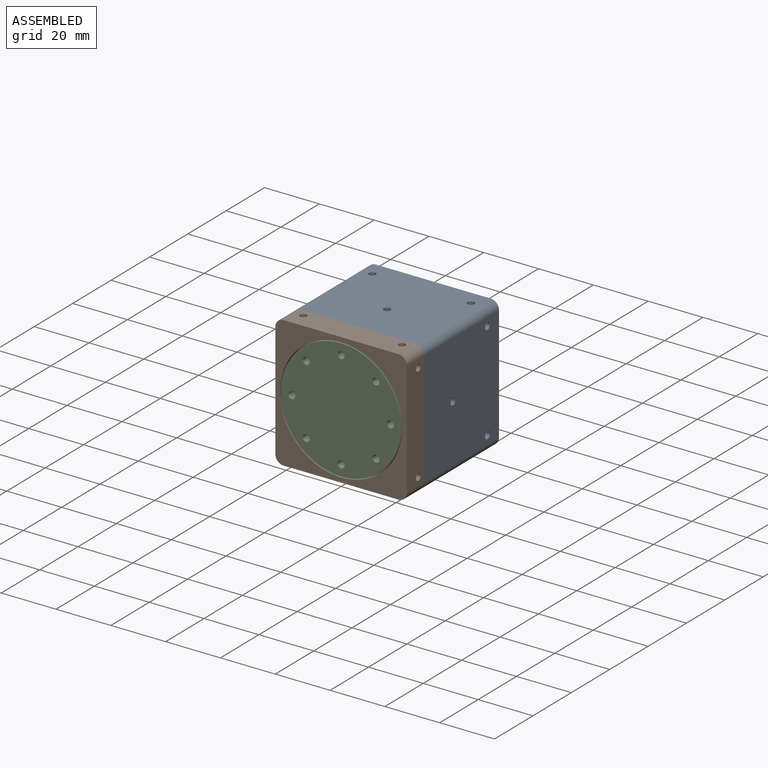
[diagram: assembled view]
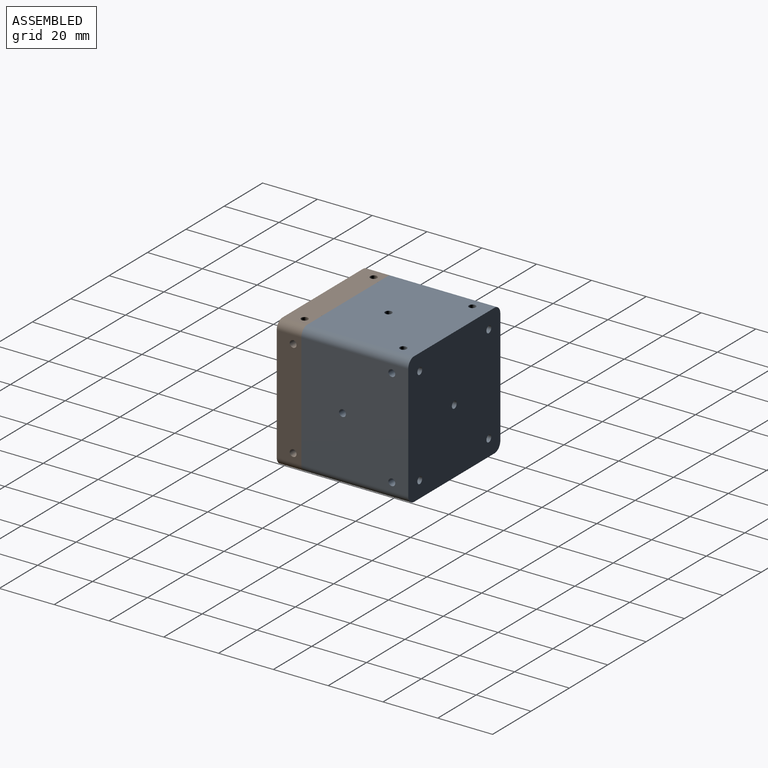
[diagram: assembled view, second angle]
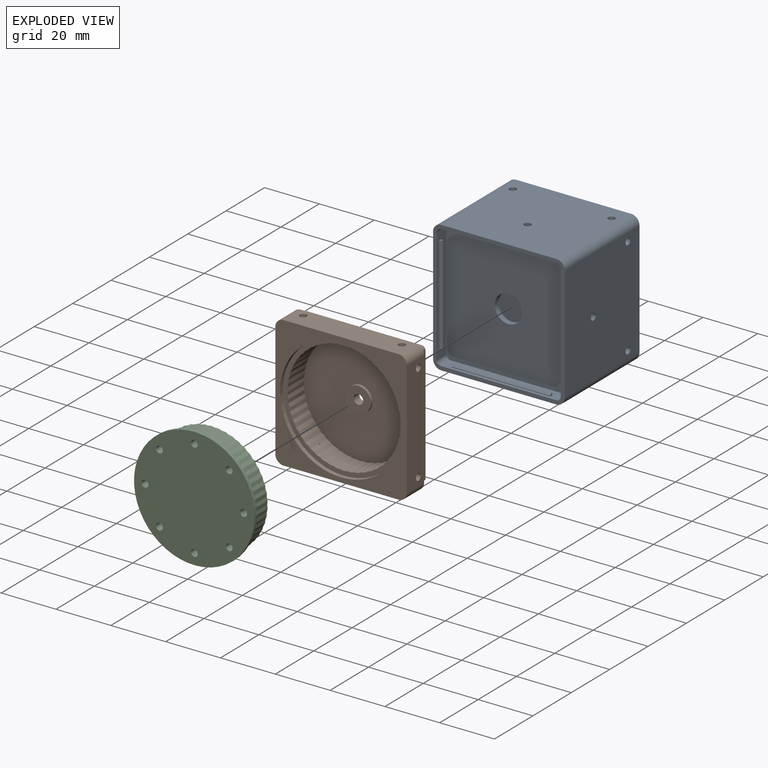
[diagram: exploded view]
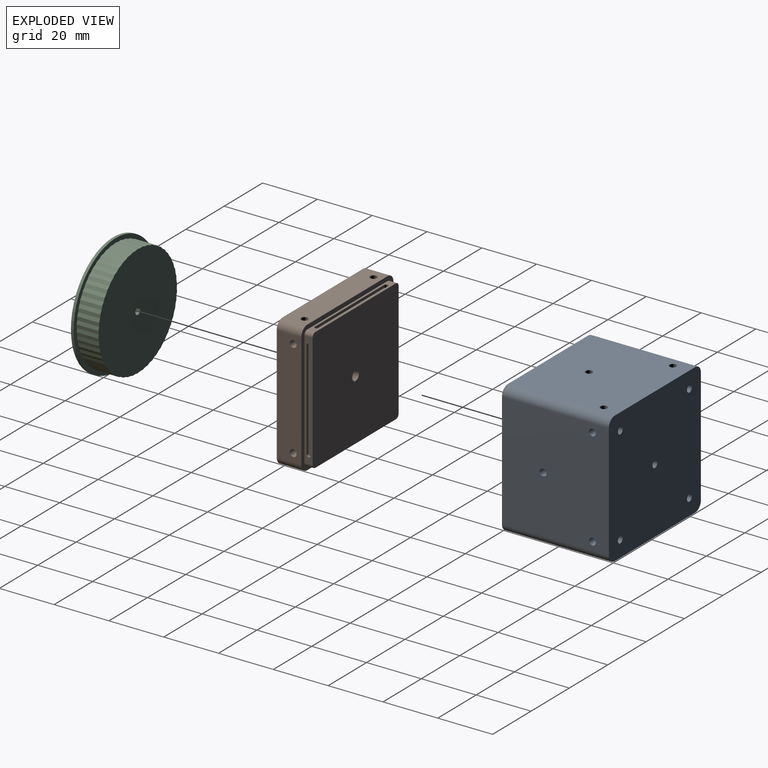
[diagram: exploded view, second angle]
ASSEMBLY  parts=3 mates=2
PART A: 95 faces, bbox 48x39x48 mm
  f0: plane 42x5mm, normal (0,0,-1), area 170.4mm2, adj f11,f13,f17,f18,f40,f41,f42,f43
  f1: plane 42x5mm, normal (1,0,0), area 170.4mm2, adj f12,f13,f17,f18,f33,f34,f35,f36
  f2: plane 42x5mm, normal (0,0,1), area 170.4mm2, adj f10,f12,f13,f18,f26,f27,f28,f29
  f3: plane 42x5mm, normal (-1,0,0), area 170.4mm2, adj f10,f11,f13,f18,f19,f20,f21,f22
  f4: plane 48x48mm, normal (0,1,0), area 2271.7mm2, adj f5,f6,f7,f8,f9,f14,f15,f16
  f5: cylinder r=3mm len=39mm, axis (0,-1,0), area 183.8mm2, adj f4,f6,f13,f15
  f6: plane 42x39mm, normal (0,0,-1), area 1623.3mm2, adj f4,f5,f7,f13,f53,f74,f79
  f7: cylinder r=3mm len=39mm, axis (0,-1,0), area 183.8mm2, adj f4,f6,f8,f13
  f8: plane 42x39mm, normal (-1,0,0), area 1623.3mm2, adj f4,f7,f9,f13,f68,f73,f77
  f9: cylinder r=3mm len=39mm, axis (0,-1,0), area 183.8mm2, adj f4,f8,f13,f14
  f10: cylinder r=1.6mm len=5mm, axis (0,-1,0), area 12.6mm2, adj f2,f3,f13,f18
  f11: cylinder r=1.6mm len=5mm, axis (0,-1,0), area 12.6mm2, adj f0,f3,f13,f18
  f12: cylinder r=1.6mm len=5mm, axis (0,-1,0), area 12.6mm2, adj f1,f2,f13,f18
  f13: plane 48x48mm, normal (0,-1,0), area 255.4mm2, adj f0,f1,f2,f3,f5,f6,f7,f8
  f14: plane 42x39mm, normal (0,0,1), area 1623.3mm2, adj f4,f9,f13,f16,f59,f63,f67
  f15: plane 42x39mm, normal (1,0,0), area 1623.3mm2, adj f4,f5,f13,f16,f49,f54,f60
  f16: cylinder r=3mm len=39mm, axis (0,-1,0), area 183.8mm2, adj f4,f13,f14,f15
  f17: cylinder r=1.6mm len=5mm, axis (0,-1,0), area 12.6mm2, adj f0,f1,f13,f18
  f18: plane 45.2x45.2mm, normal (0,-1,0), area 1962.3mm2, adj f0,f1,f2,f3,f10,f11,f12,f17
  f19: plane 1.1x0.95mm, normal (0,0,1), area 0.8mm2, adj f3,f20,f22,f23,f24,f25
  f20: plane 36x0.25mm, normal (0,-1,0), area 9mm2, adj f3,f19,f21,f24
  f21: plane 1.1x0.95mm, normal (0,0,-1), area 0.8mm2, adj f3,f20,f22,f23,f24,f25
  f22: plane 36x0.75mm, normal (0,1,0), area 27mm2, adj f3,f19,f21,f25
  f23: plane 36x0.2mm, normal (-1,0,0), area 7.2mm2, adj f19,f21,f24,f25
  f24: plane 36x0.7mm, normal (-0.71,-0.71,0), area 35.6mm2, adj f19,f20,f21,f23
  f25: plane 36x0.2mm, normal (-0.71,0.71,0), area 10.2mm2, adj f19,f21,f22,f23
  f26: plane 1.1x0.95mm, normal (1,0,0), area 0.8mm2, adj f2,f27,f29,f30,f31,f32
  f27: plane 36x0.25mm, normal (0,-1,0), area 9mm2, adj f2,f26,f28,f31
  f28: plane 1.1x0.95mm, normal (-1,0,0), area 0.8mm2, adj f2,f27,f29,f30,f31,f32
  f29: plane 36x0.75mm, normal (0,1,0), area 27mm2, adj f2,f26,f28,f32
  f30: plane 36x0.2mm, normal (0,0,1), area 7.2mm2, adj f26,f28,f31,f32
  f31: plane 36x0.7mm, normal (0,-0.71,0.71), area 35.6mm2, adj f26,f27,f28,f30
  f32: plane 36x0.2mm, normal (0,0.71,0.71), area 10.2mm2, adj f26,f28,f29,f30
  f33: plane 1.1x0.95mm, normal (0,0,-1), area 0.8mm2, adj f1,f34,f36,f37,f38,f39
  f34: plane 36x0.25mm, normal (0,-1,0), area 9mm2, adj f1,f33,f35,f38
  f35: plane 1.1x0.95mm, normal (0,0,1), area 0.8mm2, adj f1,f34,f36,f37,f38,f39
  f36: plane 36x0.75mm, normal (0,1,0), area 27mm2, adj f1,f33,f35,f39
  f37: plane 36x0.2mm, normal (1,0,0), area 7.2mm2, adj f33,f35,f38,f39
  f38: plane 36x0.7mm, normal (0.71,-0.71,0), area 35.6mm2, adj f33,f34,f35,f37
  f39: plane 36x0.2mm, normal (0.71,0.71,0), area 10.2mm2, adj f33,f35,f36,f37
  f40: plane 1.1x0.95mm, normal (-1,0,0), area 0.8mm2, adj f0,f41,f43,f44,f45,f46
  f41: plane 36x0.25mm, normal (0,-1,0), area 9mm2, adj f0,f40,f42,f45
  f42: plane 1.1x0.95mm, normal (1,0,0), area 0.8mm2, adj f0,f41,f43,f44,f45,f46
  f43: plane 36x0.75mm, normal (0,1,0), area 27mm2, adj f0,f40,f42,f46
  f44: plane 36x0.2mm, normal (0,0,-1), area 7.2mm2, adj f40,f42,f45,f46
  f45: plane 36x0.7mm, normal (0,-0.71,-0.71), area 35.6mm2, adj f40,f41,f42,f44
  f46: plane 36x0.2mm, normal (0,0.71,-0.71), area 10.2mm2, adj f40,f42,f43,f44
  f47: cylinder r=5mm len=10mm, axis (0,-1,0), area 62.8mm2, adj f18,f48
  f48: plane 10x10mm, normal (0,-1,0), area 78.5mm2, adj f47
  f49: cylinder r=1.25mm len=12mm, axis (1,0,0), area 94.2mm2, adj f15,f50
  f50: plane 2.5x2.5mm, normal (1,0,0), area 4.9mm2, adj f49
  f51: cylinder r=1.25mm len=5.12mm, axis (1,0,0), area 38.3mm2, adj f52,f53,f55,f91,f92
  f52: plane 2.5x2.5mm, normal (1,0,0), area 4.9mm2, adj f51
  f53: cylinder r=1.25mm len=5.12mm, axis (0,0,-1), area 38.3mm2, adj f6,f51,f54,f91,f92
  f54: cylinder r=1.25mm len=5.12mm, axis (1,0,0), area 38.3mm2, adj f15,f53,f55,f91,f92
  f55: cylinder r=1.25mm len=5.12mm, axis (0,0,-1), area 38.3mm2, adj f51,f54,f56,f91,f92
  f56: plane 2.5x2.5mm, normal (0,0,-1), area 4.9mm2, adj f55
  f57: cylinder r=1.25mm len=5.12mm, axis (1,0,0), area 38.3mm2, adj f58,f59,f61,f88,f89
  f58: plane 2.5x2.5mm, normal (1,0,0), area 4.9mm2, adj f57
  f59: cylinder r=1.25mm len=5.12mm, axis (0,0,1), area 38.3mm2, adj f14,f57,f60,f88,f89
  f60: cylinder r=1.25mm len=5.12mm, axis (1,0,0), area 38.3mm2, adj f15,f59,f61,f88,f89
  f61: cylinder r=1.25mm len=5.12mm, axis (0,0,1), area 38.3mm2, adj f57,f60,f62,f88,f89
  f62: plane 2.5x2.5mm, normal (0,0,1), area 4.9mm2, adj f61
  f63: cylinder r=1.25mm len=12mm, axis (0,0,1), area 94.2mm2, adj f14,f64
  f64: plane 2.5x2.5mm, normal (0,0,1), area 4.9mm2, adj f63
  f65: cylinder r=1.25mm len=5.12mm, axis (-1,0,0), area 38.3mm2, adj f66,f67,f69,f85,f86
  f66: plane 2.5x2.5mm, normal (-1,0,0), area 4.9mm2, adj f65
  f67: cylinder r=1.25mm len=5.12mm, axis (0,0,1), area 38.3mm2, adj f14,f65,f68,f85,f86
  f68: cylinder r=1.25mm len=5.12mm, axis (-1,0,0), area 38.3mm2, adj f8,f67,f69,f85,f86
  f69: cylinder r=1.25mm len=5.12mm, axis (0,0,1), area 38.3mm2, adj f65,f68,f70,f85,f86
  f70: plane 2.5x2.5mm, normal (0,0,1), area 4.9mm2, adj f69
  f71: cylinder r=1.25mm len=5.12mm, axis (0,0,-1), area 38.3mm2, adj f72,f73,f75,f82,f83
  f72: plane 2.5x2.5mm, normal (0,0,-1), area 4.9mm2, adj f71
  f73: cylinder r=1.25mm len=5.12mm, axis (-1,0,0), area 38.3mm2, adj f8,f71,f74,f82,f83
  f74: cylinder r=1.25mm len=5.12mm, axis (0,0,-1), area 38.3mm2, adj f6,f73,f75,f82,f83
  f75: cylinder r=1.25mm len=5.12mm, axis (-1,0,0), area 38.3mm2, adj f71,f74,f76,f82,f83
  f76: plane 2.5x2.5mm, normal (-1,0,0), area 4.9mm2, adj f75
  f77: cylinder r=1.25mm len=12mm, axis (-1,0,0), area 94.2mm2, adj f8,f78
  f78: plane 2.5x2.5mm, normal (-1,0,0), area 4.9mm2, adj f77
  f79: cylinder r=1.25mm len=12mm, axis (0,0,-1), area 94.2mm2, adj f6,f80
  f80: plane 2.5x2.5mm, normal (0,0,-1), area 4.9mm2, adj f79
  f81: plane 2.5x2.5mm, normal (0,1,0), area 4.9mm2, adj f82
  f82: cylinder r=1.25mm len=3.12mm, axis (0,1,0), area 22.6mm2, adj f71,f73,f74,f75,f81
  f83: cylinder r=1.25mm len=5.12mm, axis (0,1,0), area 38.3mm2, adj f4,f71,f73,f74,f75
  f84: plane 2.5x2.5mm, normal (0,1,0), area 4.9mm2, adj f85
  f85: cylinder r=1.25mm len=3.12mm, axis (0,1,0), area 22.6mm2, adj f65,f67,f68,f69,f84
  f86: cylinder r=1.25mm len=5.12mm, axis (0,1,0), area 38.3mm2, adj f4,f65,f67,f68,f69
  f87: plane 2.5x2.5mm, normal (0,1,0), area 4.9mm2, adj f88
  f88: cylinder r=1.25mm len=3.12mm, axis (0,1,0), area 22.6mm2, adj f57,f59,f60,f61,f87
  f89: cylinder r=1.25mm len=5.12mm, axis (0,1,0), area 38.3mm2, adj f4,f57,f59,f60,f61
  f90: plane 2.5x2.5mm, normal (0,1,0), area 4.9mm2, adj f91
  f91: cylinder r=1.25mm len=3.12mm, axis (0,1,0), area 22.6mm2, adj f51,f53,f54,f55,f90
  f92: cylinder r=1.25mm len=5.12mm, axis (0,1,0), area 38.3mm2, adj f4,f51,f53,f54,f55
  f93: cylinder r=1.25mm len=10mm, axis (0,1,0), area 78.5mm2, adj f4,f94
  f94: plane 2.5x2.5mm, normal (0,1,0), area 4.9mm2, adj f93
PART B: 169 faces, bbox 48x12x48 mm
  f0: plane 42x3mm, normal (1,0,0), area 70.2mm2, adj f8,f120,f123,f124,f140,f141,f142,f143
  f1: plane 42x3mm, normal (0,0,1), area 70.2mm2, adj f8,f120,f121,f124,f135,f136,f137,f138
  f2: plane 42x3mm, normal (-1,0,0), area 70.2mm2, adj f8,f121,f122,f124,f130,f131,f132,f133
  f3: plane 42x3mm, normal (0,0,-1), area 70.2mm2, adj f8,f122,f123,f124,f125,f126,f127,f128
  f4: plane 42x9mm, normal (-1,0,0), area 368.2mm2, adj f110,f116,f119,f124,f148,f167
  f5: plane 42x9mm, normal (0,0,-1), area 368.2mm2, adj f110,f116,f117,f124,f159,f168
  f6: plane 42x9mm, normal (1,0,0), area 368.2mm2, adj f110,f117,f118,f124,f154,f160
  f7: plane 42x9mm, normal (0,0,1), area 368.2mm2, adj f110,f118,f119,f124,f147,f153
  f8: plane 44.8x44.8mm, normal (0,1,0), area 1995.7mm2, adj f0,f1,f2,f3,f115,f120,f121,f122
  f9: plane 8.5x1.3mm, normal (0.99,0,0.12), area 11.1mm2, adj f10,f107,f111,f112
  f10: plane 8.5x1.3mm, normal (0.99,0,-0.12), area 11.1mm2, adj f9,f11,f111,f112
  f11: plane 8.5x1.27mm, normal (0.97,0,0.25), area 11.1mm2, adj f10,f12,f111,f112
  f12: plane 8.5x1.31mm, normal (1,0,0), area 11.1mm2, adj f11,f13,f111,f112
  f13: plane 8.5x1.22mm, normal (0.93,0,0.37), area 11.1mm2, adj f12,f14,f111,f112
  f14: plane 8.5x1.3mm, normal (0.99,0,0.13), area 11.1mm2, adj f13,f15,f111,f112
  f15: plane 8.5x1.15mm, normal (0.88,0,0.48), area 11.1mm2, adj f14,f16,f111,f112
  f16: plane 8.5x1.27mm, normal (0.97,0,0.25), area 11.1mm2, adj f15,f17,f111,f112
  f17: plane 8.5x1.06mm, normal (0.81,0,0.59), area 11.1mm2, adj f16,f18,f111,f112
  f18: plane 8.5x1.22mm, normal (0.93,0,0.37), area 11.1mm2, adj f17,f19,f111,f112
  f19: plane 8.5x0.96mm, normal (0.73,0,0.68), area 11.1mm2, adj f18,f20,f111,f112
  f20: plane 8.5x1.15mm, normal (0.88,0,0.48), area 11.1mm2, adj f19,f21,f111,f112
  f21: plane 8.5x1.01mm, normal (0.64,0,0.77), area 11.1mm2, adj f20,f22,f111,f112
  f22: plane 8.5x1.06mm, normal (0.81,0,0.59), area 11.1mm2, adj f21,f23,f111,f112
  f23: plane 8.5x1.1mm, normal (0.54,0,0.84), area 11.1mm2, adj f22,f24,f111,f112
  f24: plane 8.5x0.95mm, normal (0.73,0,0.69), area 11.1mm2, adj f23,f25,f111,f112
  f25: plane 8.5x1.18mm, normal (0.43,0,0.9), area 11mm2, adj f24,f26,f111,f112,f163,f164
  f26: plane 8.5x1.01mm, normal (0.64,0,0.77), area 11.1mm2, adj f25,f27,f111,f112
  f27: plane 8.5x1.25mm, normal (0.31,0,0.95), area 11.1mm2, adj f26,f28,f111,f112
  f28: plane 8.5x1.11mm, normal (0.53,0,0.85), area 11.1mm2, adj f27,f29,f111,f112
  f29: plane 8.5x1.29mm, normal (0.19,0,0.98), area 11.1mm2, adj f28,f30,f111,f112
  f30: plane 8.5x1.19mm, normal (0.42,0,0.91), area 11.1mm2, adj f29,f31,f111,f112
  f31: plane 8.5x1.31mm, normal (0.07,0,1), area 11.1mm2, adj f30,f32,f111,f112
  f32: plane 8.5x1.25mm, normal (0.31,0,0.95), area 11.1mm2, adj f31,f33,f111,f112
  f33: plane 8.5x1.31mm, normal (-0.06,0,1), area 11.1mm2, adj f32,f34,f111,f112
  f34: plane 8.5x1.29mm, normal (0.19,0,0.98), area 11.1mm2, adj f33,f35,f111,f112
  f35: plane 8.5x1.29mm, normal (-0.19,0,0.98), area 11.1mm2, adj f34,f36,f111,f112
  f36: plane 8.5x1.31mm, normal (0.06,0,1), area 11.1mm2, adj f35,f37,f111,f112
  f37: plane 8.5x1.25mm, normal (-0.31,0,0.95), area 11.1mm2, adj f36,f38,f111,f112
  f38: plane 8.5x1.31mm, normal (-0.07,0,1), area 11.1mm2, adj f37,f39,f111,f112
  f39: plane 8.5x1.19mm, normal (-0.42,0,0.91), area 11.1mm2, adj f38,f40,f111,f112
  f40: plane 8.5x1.29mm, normal (-0.19,0,0.98), area 11.1mm2, adj f39,f41,f111,f112
  f41: plane 8.5x1.11mm, normal (-0.53,0,0.85), area 11.1mm2, adj f40,f42,f111,f112
  f42: plane 8.5x1.25mm, normal (-0.31,0,0.95), area 11.1mm2, adj f41,f43,f111,f112
  f43: plane 8.5x1.01mm, normal (-0.64,0,0.77), area 11.1mm2, adj f42,f44,f111,f112
  f44: plane 8.5x1.18mm, normal (-0.43,0,0.9), area 11mm2, adj f43,f45,f111,f112,f157,f158
  f45: plane 8.5x0.95mm, normal (-0.73,0,0.69), area 11.1mm2, adj f44,f46,f111,f112
  f46: plane 8.5x1.1mm, normal (-0.54,0,0.84), area 11.1mm2, adj f45,f47,f111,f112
  f47: plane 8.5x1.06mm, normal (-0.81,0,0.59), area 11.1mm2, adj f46,f48,f111,f112
  f48: plane 8.5x1.01mm, normal (-0.64,0,0.77), area 11.1mm2, adj f47,f49,f111,f112
  f49: plane 8.5x1.15mm, normal (-0.88,0,0.48), area 11.1mm2, adj f48,f50,f111,f112
  f50: plane 8.5x0.96mm, normal (-0.73,0,0.68), area 11.1mm2, adj f49,f51,f111,f112
  f51: plane 8.5x1.22mm, normal (-0.93,0,0.37), area 11.1mm2, adj f50,f52,f111,f112
  f52: plane 8.5x1.06mm, normal (-0.81,0,0.59), area 11.1mm2, adj f51,f53,f111,f112
  f53: plane 8.5x1.27mm, normal (-0.97,0,0.25), area 11.1mm2, adj f52,f54,f111,f112
  f54: plane 8.5x1.15mm, normal (-0.88,0,0.48), area 11.1mm2, adj f53,f55,f111,f112
  f55: plane 8.5x1.3mm, normal (-0.99,0,0.13), area 11.1mm2, adj f54,f56,f111,f112
  f56: plane 8.5x1.22mm, normal (-0.93,0,0.37), area 11.1mm2, adj f55,f57,f111,f112
  f57: plane 8.5x1.31mm, normal (-1,0,0), area 11.1mm2, adj f56,f58,f111,f112
  f58: plane 8.5x1.27mm, normal (-0.97,0,0.25), area 11.1mm2, adj f57,f59,f111,f112
  f59: plane 8.5x1.3mm, normal (-0.99,0,-0.12), area 11.1mm2, adj f58,f60,f111,f112
  f60: plane 8.5x1.3mm, normal (-0.99,0,0.12), area 11.1mm2, adj f59,f61,f111,f112
  f61: plane 8.5x1.27mm, normal (-0.97,0,-0.25), area 11.1mm2, adj f60,f62,f111,f112
  f62: plane 8.5x1.31mm, normal (-1,0,0), area 11.1mm2, adj f61,f63,f111,f112
  f63: plane 8.5x1.22mm, normal (-0.93,0,-0.37), area 11.1mm2, adj f62,f64,f111,f112
  f64: plane 8.5x1.3mm, normal (-0.99,0,-0.13), area 11.1mm2, adj f63,f65,f111,f112
  f65: plane 8.5x1.15mm, normal (-0.88,0,-0.48), area 11.1mm2, adj f64,f66,f111,f112
  f66: plane 8.5x1.27mm, normal (-0.97,0,-0.25), area 11.1mm2, adj f65,f67,f111,f112
  f67: plane 8.5x1.06mm, normal (-0.81,0,-0.59), area 11.1mm2, adj f66,f68,f111,f112
  f68: plane 8.5x1.22mm, normal (-0.93,0,-0.37), area 11.1mm2, adj f67,f69,f111,f112
  f69: plane 8.5x0.96mm, normal (-0.73,0,-0.68), area 11.1mm2, adj f68,f70,f111,f112
  f70: plane 8.5x1.15mm, normal (-0.88,0,-0.48), area 11.1mm2, adj f69,f71,f111,f112
  f71: plane 8.5x1.01mm, normal (-0.64,0,-0.77), area 11.1mm2, adj f70,f72,f111,f112
  f72: plane 8.5x1.06mm, normal (-0.81,0,-0.59), area 11.1mm2, adj f71,f73,f111,f112
  f73: plane 8.5x1.1mm, normal (-0.54,0,-0.84), area 11.1mm2, adj f72,f74,f111,f112
  f74: plane 8.5x0.95mm, normal (-0.73,0,-0.69), area 11.1mm2, adj f73,f75,f111,f112
  f75: plane 8.5x1.18mm, normal (-0.43,0,-0.9), area 11mm2, adj f74,f76,f111,f112,f151,f152
  f76: plane 8.5x1.01mm, normal (-0.64,0,-0.77), area 11.1mm2, adj f75,f77,f111,f112
  f77: plane 8.5x1.25mm, normal (-0.31,0,-0.95), area 11.1mm2, adj f76,f78,f111,f112
  f78: plane 8.5x1.11mm, normal (-0.53,0,-0.85), area 11.1mm2, adj f77,f79,f111,f112
  f79: plane 8.5x1.29mm, normal (-0.19,0,-0.98), area 11.1mm2, adj f78,f80,f111,f112
  f80: plane 8.5x1.19mm, normal (-0.42,0,-0.91), area 11.1mm2, adj f79,f81,f111,f112
  f81: plane 8.5x1.31mm, normal (-0.07,0,-1), area 11.1mm2, adj f80,f82,f111,f112
  f82: plane 8.5x1.25mm, normal (-0.31,0,-0.95), area 11.1mm2, adj f81,f83,f111,f112
  f83: plane 8.5x1.31mm, normal (0.06,0,-1), area 11.1mm2, adj f82,f84,f111,f112
  f84: plane 8.5x1.29mm, normal (-0.19,0,-0.98), area 11.1mm2, adj f83,f85,f111,f112
  f85: plane 8.5x1.29mm, normal (0.19,0,-0.98), area 11.1mm2, adj f84,f86,f111,f112
  f86: plane 8.5x1.31mm, normal (-0.06,0,-1), area 11.1mm2, adj f85,f87,f111,f112
  f87: plane 8.5x1.25mm, normal (0.31,0,-0.95), area 11.1mm2, adj f86,f88,f111,f112
  f88: plane 8.5x1.31mm, normal (0.07,0,-1), area 11.1mm2, adj f87,f89,f111,f112
  f89: plane 8.5x1.19mm, normal (0.42,0,-0.91), area 11.1mm2, adj f88,f90,f111,f112
  f90: plane 8.5x1.29mm, normal (0.19,0,-0.98), area 11.1mm2, adj f89,f91,f111,f112
  f91: plane 8.5x1.11mm, normal (0.53,0,-0.85), area 11.1mm2, adj f90,f92,f111,f112
  f92: plane 8.5x1.25mm, normal (0.31,0,-0.95), area 11.1mm2, adj f91,f93,f111,f112
  f93: plane 8.5x1.01mm, normal (0.64,0,-0.77), area 11.1mm2, adj f92,f94,f111,f112
  f94: plane 8.5x1.18mm, normal (0.43,0,-0.9), area 11mm2, adj f93,f95,f111,f112,f145,f146
  f95: plane 8.5x0.95mm, normal (0.73,0,-0.69), area 11.1mm2, adj f94,f96,f111,f112
  f96: plane 8.5x1.1mm, normal (0.54,0,-0.84), area 11.1mm2, adj f95,f97,f111,f112
  f97: plane 8.5x1.06mm, normal (0.81,0,-0.59), area 11.1mm2, adj f96,f98,f111,f112
  f98: plane 8.5x1.01mm, normal (0.64,0,-0.77), area 11.1mm2, adj f97,f99,f111,f112
  f99: plane 8.5x1.15mm, normal (0.88,0,-0.48), area 11.1mm2, adj f98,f100,f111,f112
  f100: plane 8.5x0.96mm, normal (0.73,0,-0.68), area 11.1mm2, adj f99,f101,f111,f112
  f101: plane 8.5x1.22mm, normal (0.93,0,-0.37), area 11.1mm2, adj f100,f102,f111,f112
  f102: plane 8.5x1.06mm, normal (0.81,0,-0.59), area 11.1mm2, adj f101,f103,f111,f112
  f103: plane 8.5x1.27mm, normal (0.97,0,-0.25), area 11.1mm2, adj f102,f104,f111,f112
  f104: plane 8.5x1.15mm, normal (0.88,0,-0.48), area 11.1mm2, adj f103,f105,f111,f112
  f105: plane 8.5x1.3mm, normal (0.99,0,-0.13), area 11.1mm2, adj f104,f106,f111,f112
  f106: plane 8.5x1.22mm, normal (0.93,0,-0.37), area 11.1mm2, adj f105,f108,f111,f112
  f107: plane 8.5x1.27mm, normal (0.97,0,-0.25), area 11.1mm2, adj f9,f108,f111,f112
  f108: plane 8.5x1.31mm, normal (1,0,0), area 11.1mm2, adj f106,f107,f111,f112
  f109: cylinder r=22.3mm len=44.6mm, axis (0,-1,0), area 210.2mm2, adj f110,f111
  f110: plane 48x48mm, normal (0,-1,0), area 734mm2, adj f4,f5,f6,f7,f109,f116,f117,f118
  f111: plane 44.6x44.6mm, normal (0,-1,0), area 229.7mm2, adj f9,f10,f11,f12,f13,f14,f15,f16
  f112: plane 41.41x41.33mm, normal (0,-1,0), area 1269mm2, adj f9,f10,f11,f12,f13,f14,f15,f16
  f113: plane 9x9mm, normal (0,-1,0), area 54mm2, adj f114,f115
  f114: cylinder r=4.5mm len=9mm, axis (0,1,0), area 28.3mm2, adj f112,f113
  f115: cylinder r=1.75mm len=3.5mm, axis (0,1,0), area 33mm2, adj f8,f113
  f116: cylinder r=3mm len=9mm, axis (0,-1,0), area 42.4mm2, adj f4,f5,f110,f124
  f117: cylinder r=3mm len=9mm, axis (0,1,0), area 42.4mm2, adj f5,f6,f110,f124
  f118: cylinder r=3mm len=9mm, axis (0,-1,0), area 42.4mm2, adj f6,f7,f110,f124
  f119: cylinder r=3mm len=9mm, axis (0,1,0), area 42.4mm2, adj f4,f7,f110,f124
  f120: cylinder r=1.4mm len=3mm, axis (0,1,0), area 6.6mm2, adj f0,f1,f8,f124
  f121: cylinder r=1.4mm len=3mm, axis (0,1,0), area 6.6mm2, adj f1,f2,f8,f124
  f122: cylinder r=1.4mm len=3mm, axis (0,1,0), area 6.6mm2, adj f2,f3,f8,f124
  f123: cylinder r=1.4mm len=3mm, axis (0,1,0), area 6.6mm2, adj f0,f3,f8,f124
  f124: plane 48x48mm, normal (0,1,0), area 290.9mm2, adj f0,f1,f2,f3,f4,f5,f6,f7
  f125: cylinder r=0.75mm len=1.5mm, axis (0,0,-1), area 2.4mm2, adj f3,f126,f128,f129
  f126: plane 36x1mm, normal (0,1,0), area 36mm2, adj f3,f125,f127,f129
  f127: cylinder r=0.75mm len=1.5mm, axis (0,0,-1), area 2.4mm2, adj f3,f126,f128,f129
  f128: plane 36x1mm, normal (0,-1,0), area 36mm2, adj f3,f125,f127,f129
  f129: plane 37.5x1.5mm, normal (0,0,-1), area 55.8mm2, adj f125,f126,f127,f128
  f130: cylinder r=0.75mm len=1.5mm, axis (-1,0,0), area 2.4mm2, adj f2,f131,f133,f134
  f131: plane 36x1mm, normal (0,1,0), area 36mm2, adj f2,f130,f132,f134
  f132: cylinder r=0.75mm len=1.5mm, axis (-1,0,0), area 2.4mm2, adj f2,f131,f133,f134
  f133: plane 36x1mm, normal (0,-1,0), area 36mm2, adj f2,f130,f132,f134
  f134: plane 37.5x1.5mm, normal (-1,0,0), area 55.8mm2, adj f130,f131,f132,f133
  f135: cylinder r=0.75mm len=1.5mm, axis (0,0,1), area 2.4mm2, adj f1,f136,f138,f139
  f136: plane 36x1mm, normal (0,1,0), area 36mm2, adj f1,f135,f137,f139
  f137: cylinder r=0.75mm len=1.5mm, axis (0,0,1), area 2.4mm2, adj f1,f136,f138,f139
  f138: plane 36x1mm, normal (0,-1,0), area 36mm2, adj f1,f135,f137,f139
  f139: plane 37.5x1.5mm, normal (0,0,1), area 55.8mm2, adj f135,f136,f137,f138
  f140: cylinder r=0.75mm len=1.5mm, axis (1,0,0), area 2.4mm2, adj f0,f141,f143,f144
  f141: plane 36x1mm, normal (0,1,0), area 36mm2, adj f0,f140,f142,f144
  f142: cylinder r=0.75mm len=1.5mm, axis (1,0,0), area 2.4mm2, adj f0,f141,f143,f144
  f143: plane 36x1mm, normal (0,-1,0), area 36mm2, adj f0,f140,f142,f144
  f144: plane 37.5x1.5mm, normal (1,0,0), area 55.8mm2, adj f140,f141,f142,f143
  f145: cylinder r=1.25mm len=6mm, axis (-1,0,0), area 40.8mm2, adj f94,f146,f147,f149
  f146: plane 2.5x2.42mm, normal (-1,0,0), area 4.9mm2, adj f94,f145
  f147: cylinder r=1.25mm len=6mm, axis (0,0,1), area 40.9mm2, adj f7,f145,f148
  f148: cylinder r=1.25mm len=6mm, axis (-1,0,0), area 40.9mm2, adj f4,f147,f149
  f149: cylinder r=1.25mm len=6mm, axis (0,0,1), area 40.9mm2, adj f145,f148,f150
  f150: plane 2.5x2.5mm, normal (0,0,1), area 4.9mm2, adj f149
  f151: cylinder r=1.25mm len=6mm, axis (1,0,0), area 40.8mm2, adj f75,f152,f153,f155
  f152: plane 2.5x2.42mm, normal (1,0,0), area 4.9mm2, adj f75,f151
  f153: cylinder r=1.25mm len=6mm, axis (0,0,1), area 40.9mm2, adj f7,f151,f154
  f154: cylinder r=1.25mm len=6mm, axis (1,0,0), area 40.9mm2, adj f6,f153,f155
  f155: cylinder r=1.25mm len=6mm, axis (0,0,1), area 40.9mm2, adj f151,f154,f156
  f156: plane 2.5x2.5mm, normal (0,0,1), area 4.9mm2, adj f155
  f157: cylinder r=1.25mm len=6mm, axis (1,0,0), area 40.8mm2, adj f44,f158,f159,f161
  f158: plane 2.5x2.42mm, normal (1,0,0), area 4.9mm2, adj f44,f157
  f159: cylinder r=1.25mm len=6mm, axis (0,0,-1), area 40.9mm2, adj f5,f157,f160
  f160: cylinder r=1.25mm len=6mm, axis (1,0,0), area 40.9mm2, adj f6,f159,f161
  f161: cylinder r=1.25mm len=6mm, axis (0,0,-1), area 40.9mm2, adj f157,f160,f162
  f162: plane 2.5x2.5mm, normal (0,0,-1), area 4.9mm2, adj f161
  f163: cylinder r=1.25mm len=6mm, axis (-1,0,0), area 40.8mm2, adj f25,f164,f165,f168
  f164: plane 2.5x2.42mm, normal (-1,0,0), area 4.9mm2, adj f25,f163
  f165: cylinder r=1.25mm len=6mm, axis (0,0,-1), area 40.9mm2, adj f163,f166,f167
  f166: plane 2.5x2.5mm, normal (0,0,-1), area 4.9mm2, adj f165
  f167: cylinder r=1.25mm len=6mm, axis (-1,0,0), area 40.9mm2, adj f4,f165,f168
  f168: cylinder r=1.25mm len=6mm, axis (0,0,-1), area 40.9mm2, adj f5,f163,f167
PART C: 122 faces, bbox 44x9x44 mm
  f0: cylinder r=22mm len=44mm, axis (0,-1,0), area 138.2mm2, adj f1,f2
  f1: plane 44x44mm, normal (0,1,0), area 214mm2, adj f0,f3,f4,f5,f6,f7,f8,f9
  f2: plane 44x44mm, normal (0,-1,0), area 1481.3mm2, adj f0,f104,f106,f108,f110,f112,f114,f116
  f3: plane 8x1.29mm, normal (-0.99,0,-0.12), area 10.4mm2, adj f1,f4,f102,f103
  f4: plane 8x1.26mm, normal (-0.97,0,0.25), area 10.4mm2, adj f1,f3,f5,f103
  f5: plane 8x1.3mm, normal (-1,0,0), area 10.4mm2, adj f1,f4,f6,f103
  f6: plane 8x1.21mm, normal (-0.93,0,0.37), area 10.4mm2, adj f1,f5,f7,f103
  f7: plane 8x1.29mm, normal (-0.99,0,0.13), area 10.4mm2, adj f1,f6,f8,f103
  f8: plane 8x1.14mm, normal (-0.88,0,0.48), area 10.4mm2, adj f1,f7,f9,f103
  f9: plane 8x1.26mm, normal (-0.97,0,0.25), area 10.4mm2, adj f1,f8,f10,f103
  f10: plane 8x1.05mm, normal (-0.81,0,0.59), area 10.4mm2, adj f1,f9,f11,f103
  f11: plane 8x1.21mm, normal (-0.93,0,0.37), area 10.4mm2, adj f1,f10,f12,f103
  f12: plane 8x0.95mm, normal (-0.73,0,0.68), area 10.4mm2, adj f1,f11,f13,f103
  f13: plane 8x1.14mm, normal (-0.88,0,0.48), area 10.4mm2, adj f1,f12,f14,f103
  f14: plane 8x1mm, normal (-0.64,0,0.77), area 10.4mm2, adj f1,f13,f15,f103
  f15: plane 8x1.05mm, normal (-0.81,0,0.59), area 10.4mm2, adj f1,f14,f16,f103
  f16: plane 8x1.09mm, normal (-0.54,0,0.84), area 10.4mm2, adj f1,f15,f17,f103
  f17: plane 8x0.94mm, normal (-0.73,0,0.69), area 10.4mm2, adj f1,f16,f18,f103
  f18: plane 8x1.17mm, normal (-0.43,0,0.9), area 10.4mm2, adj f1,f17,f19,f103
  f19: plane 8x1mm, normal (-0.64,0,0.77), area 10.4mm2, adj f1,f18,f20,f103
  f20: plane 8x1.23mm, normal (-0.31,0,0.95), area 10.4mm2, adj f1,f19,f21,f103
  f21: plane 8x1.1mm, normal (-0.53,0,0.85), area 10.4mm2, adj f1,f20,f22,f103
  f22: plane 8x1.27mm, normal (-0.19,0,0.98), area 10.4mm2, adj f1,f21,f23,f103
  f23: plane 8x1.18mm, normal (-0.42,0,0.91), area 10.4mm2, adj f1,f22,f24,f103
  f24: plane 8x1.29mm, normal (-0.07,0,1), area 10.4mm2, adj f1,f23,f25,f103
  f25: plane 8x1.23mm, normal (-0.31,0,0.95), area 10.4mm2, adj f1,f24,f26,f103
  f26: plane 8x1.29mm, normal (0.06,0,1), area 10.4mm2, adj f1,f25,f27,f103
  f27: plane 8x1.27mm, normal (-0.19,0,0.98), area 10.4mm2, adj f1,f26,f28,f103
  f28: plane 8x1.27mm, normal (0.19,0,0.98), area 10.4mm2, adj f1,f27,f29,f103
  f29: plane 8x1.29mm, normal (-0.06,0,1), area 10.4mm2, adj f1,f28,f30,f103
  f30: plane 8x1.23mm, normal (0.31,0,0.95), area 10.4mm2, adj f1,f29,f31,f103
  f31: plane 8x1.29mm, normal (0.07,0,1), area 10.4mm2, adj f1,f30,f32,f103
  f32: plane 8x1.18mm, normal (0.42,0,0.91), area 10.4mm2, adj f1,f31,f33,f103
  f33: plane 8x1.27mm, normal (0.19,0,0.98), area 10.4mm2, adj f1,f32,f34,f103
  f34: plane 8x1.1mm, normal (0.53,0,0.85), area 10.4mm2, adj f1,f33,f35,f103
  f35: plane 8x1.23mm, normal (0.31,0,0.95), area 10.4mm2, adj f1,f34,f36,f103
  f36: plane 8x1mm, normal (0.64,0,0.77), area 10.4mm2, adj f1,f35,f37,f103
  f37: plane 8x1.17mm, normal (0.43,0,0.9), area 10.4mm2, adj f1,f36,f38,f103
  f38: plane 8x0.94mm, normal (0.73,0,0.69), area 10.4mm2, adj f1,f37,f39,f103
  f39: plane 8x1.09mm, normal (0.54,0,0.84), area 10.4mm2, adj f1,f38,f40,f103
  f40: plane 8x1.05mm, normal (0.81,0,0.59), area 10.4mm2, adj f1,f39,f41,f103
  f41: plane 8x1mm, normal (0.64,0,0.77), area 10.4mm2, adj f1,f40,f42,f103
  f42: plane 8x1.14mm, normal (0.88,0,0.48), area 10.4mm2, adj f1,f41,f43,f103
  f43: plane 8x0.95mm, normal (0.73,0,0.68), area 10.4mm2, adj f1,f42,f44,f103
  f44: plane 8x1.21mm, normal (0.93,0,0.37), area 10.4mm2, adj f1,f43,f45,f103
  f45: plane 8x1.05mm, normal (0.81,0,0.59), area 10.4mm2, adj f1,f44,f46,f103
  f46: plane 8x1.26mm, normal (0.97,0,0.25), area 10.4mm2, adj f1,f45,f47,f103
  f47: plane 8x1.14mm, normal (0.88,0,0.48), area 10.4mm2, adj f1,f46,f48,f103
  f48: plane 8x1.29mm, normal (0.99,0,0.13), area 10.4mm2, adj f1,f47,f49,f103
  f49: plane 8x1.21mm, normal (0.93,0,0.37), area 10.4mm2, adj f1,f48,f50,f103
  f50: plane 8x1.3mm, normal (1,0,0), area 10.4mm2, adj f1,f49,f51,f103
  f51: plane 8x1.26mm, normal (0.97,0,0.25), area 10.4mm2, adj f1,f50,f52,f103
  f52: plane 8x1.29mm, normal (0.99,0,-0.12), area 10.4mm2, adj f1,f51,f53,f103
  f53: plane 8x1.29mm, normal (0.99,0,0.12), area 10.4mm2, adj f1,f52,f54,f103
  f54: plane 8x1.26mm, normal (0.97,0,-0.25), area 10.4mm2, adj f1,f53,f55,f103
  f55: plane 8x1.3mm, normal (1,0,0), area 10.4mm2, adj f1,f54,f56,f103
  f56: plane 8x1.21mm, normal (0.93,0,-0.37), area 10.4mm2, adj f1,f55,f57,f103
  f57: plane 8x1.29mm, normal (0.99,0,-0.13), area 10.4mm2, adj f1,f56,f58,f103
  f58: plane 8x1.14mm, normal (0.88,0,-0.48), area 10.4mm2, adj f1,f57,f59,f103
  f59: plane 8x1.26mm, normal (0.97,0,-0.25), area 10.4mm2, adj f1,f58,f60,f103
  f60: plane 8x1.05mm, normal (0.81,0,-0.59), area 10.4mm2, adj f1,f59,f61,f103
  f61: plane 8x1.21mm, normal (0.93,0,-0.37), area 10.4mm2, adj f1,f60,f62,f103
  f62: plane 8x0.95mm, normal (0.73,0,-0.68), area 10.4mm2, adj f1,f61,f63,f103
  f63: plane 8x1.14mm, normal (0.88,0,-0.48), area 10.4mm2, adj f1,f62,f64,f103
  f64: plane 8x1mm, normal (0.64,0,-0.77), area 10.4mm2, adj f1,f63,f65,f103
  f65: plane 8x1.05mm, normal (0.81,0,-0.59), area 10.4mm2, adj f1,f64,f66,f103
  f66: plane 8x1.09mm, normal (0.54,0,-0.84), area 10.4mm2, adj f1,f65,f67,f103
  f67: plane 8x0.94mm, normal (0.73,0,-0.69), area 10.4mm2, adj f1,f66,f68,f103
  f68: plane 8x1.17mm, normal (0.43,0,-0.9), area 10.4mm2, adj f1,f67,f69,f103
  f69: plane 8x1mm, normal (0.64,0,-0.77), area 10.4mm2, adj f1,f68,f70,f103
  f70: plane 8x1.23mm, normal (0.31,0,-0.95), area 10.4mm2, adj f1,f69,f71,f103
  f71: plane 8x1.1mm, normal (0.53,0,-0.85), area 10.4mm2, adj f1,f70,f72,f103
  f72: plane 8x1.27mm, normal (0.19,0,-0.98), area 10.4mm2, adj f1,f71,f73,f103
  f73: plane 8x1.18mm, normal (0.42,0,-0.91), area 10.4mm2, adj f1,f72,f74,f103
  f74: plane 8x1.29mm, normal (0.07,0,-1), area 10.4mm2, adj f1,f73,f75,f103
  f75: plane 8x1.23mm, normal (0.31,0,-0.95), area 10.4mm2, adj f1,f74,f76,f103
  f76: plane 8x1.29mm, normal (-0.06,0,-1), area 10.4mm2, adj f1,f75,f77,f103
  f77: plane 8x1.27mm, normal (0.19,0,-0.98), area 10.4mm2, adj f1,f76,f78,f103
  f78: plane 8x1.27mm, normal (-0.19,0,-0.98), area 10.4mm2, adj f1,f77,f79,f103
  f79: plane 8x1.29mm, normal (0.06,0,-1), area 10.4mm2, adj f1,f78,f80,f103
  f80: plane 8x1.23mm, normal (-0.31,0,-0.95), area 10.4mm2, adj f1,f79,f81,f103
  f81: plane 8x1.29mm, normal (-0.07,0,-1), area 10.4mm2, adj f1,f80,f82,f103
  f82: plane 8x1.18mm, normal (-0.42,0,-0.91), area 10.4mm2, adj f1,f81,f83,f103
  f83: plane 8x1.27mm, normal (-0.19,0,-0.98), area 10.4mm2, adj f1,f82,f84,f103
  f84: plane 8x1.1mm, normal (-0.53,0,-0.85), area 10.4mm2, adj f1,f83,f85,f103
  f85: plane 8x1.23mm, normal (-0.31,0,-0.95), area 10.4mm2, adj f1,f84,f86,f103
  f86: plane 8x1mm, normal (-0.64,0,-0.77), area 10.4mm2, adj f1,f85,f87,f103
  f87: plane 8x1.17mm, normal (-0.43,0,-0.9), area 10.4mm2, adj f1,f86,f88,f103
  f88: plane 8x0.94mm, normal (-0.73,0,-0.69), area 10.4mm2, adj f1,f87,f89,f103
  f89: plane 8x1.09mm, normal (-0.54,0,-0.84), area 10.4mm2, adj f1,f88,f90,f103
  f90: plane 8x1.05mm, normal (-0.81,0,-0.59), area 10.4mm2, adj f1,f89,f91,f103
  f91: plane 8x1mm, normal (-0.64,0,-0.77), area 10.4mm2, adj f1,f90,f92,f103
  f92: plane 8x1.14mm, normal (-0.88,0,-0.48), area 10.4mm2, adj f1,f91,f93,f103
  f93: plane 8x0.95mm, normal (-0.73,0,-0.68), area 10.4mm2, adj f1,f92,f94,f103
  f94: plane 8x1.21mm, normal (-0.93,0,-0.37), area 10.4mm2, adj f1,f93,f95,f103
  f95: plane 8x1.05mm, normal (-0.81,0,-0.59), area 10.4mm2, adj f1,f94,f96,f103
  f96: plane 8x1.26mm, normal (-0.97,0,-0.25), area 10.4mm2, adj f1,f95,f97,f103
  f97: plane 8x1.14mm, normal (-0.88,0,-0.48), area 10.4mm2, adj f1,f96,f98,f103
  f98: plane 8x1.29mm, normal (-0.99,0,-0.13), area 10.4mm2, adj f1,f97,f99,f103
  f99: plane 8x1.21mm, normal (-0.93,0,-0.37), area 10.4mm2, adj f1,f98,f100,f103
  f100: plane 8x1.3mm, normal (-1,0,0), area 10.4mm2, adj f1,f99,f101,f103
  f101: plane 8x1.26mm, normal (-0.97,0,-0.25), area 10.4mm2, adj f1,f100,f102,f103
  f102: plane 8x1.29mm, normal (-0.99,0,0.12), area 10.4mm2, adj f1,f3,f101,f103
  f103: plane 41x40.92mm, normal (0,1,0), area 1301.6mm2, adj f3,f4,f5,f6,f7,f8,f9,f10
  f104: cylinder r=1.25mm len=6mm, axis (0,-1,0), area 47.1mm2, adj f2,f105
  f105: plane 2.5x2.5mm, normal (0,-1,0), area 4.9mm2, adj f104
  f106: cylinder r=1.25mm len=6mm, axis (0,-1,0), area 47.1mm2, adj f2,f107
  f107: plane 2.5x2.5mm, normal (0,-1,0), area 4.9mm2, adj f106
  f108: cylinder r=1.25mm len=6mm, axis (0,-1,0), area 47.1mm2, adj f2,f109
  f109: plane 2.5x2.5mm, normal (0,-1,0), area 4.9mm2, adj f108
  f110: cylinder r=1.25mm len=6mm, axis (0,-1,0), area 47.1mm2, adj f2,f111
  f111: plane 2.5x2.5mm, normal (0,-1,0), area 4.9mm2, adj f110
  f112: cylinder r=1.25mm len=6mm, axis (0,-1,0), area 47.1mm2, adj f2,f113
  f113: plane 2.5x2.5mm, normal (0,-1,0), area 4.9mm2, adj f112
  f114: cylinder r=1.25mm len=6mm, axis (0,-1,0), area 47.1mm2, adj f2,f115
  f115: plane 2.5x2.5mm, normal (0,-1,0), area 4.9mm2, adj f114
  f116: cylinder r=1.25mm len=6mm, axis (0,-1,0), area 47.1mm2, adj f2,f117
  f117: plane 2.5x2.5mm, normal (0,-1,0), area 4.9mm2, adj f116
  f118: cylinder r=1.25mm len=6mm, axis (0,-1,0), area 47.1mm2, adj f2,f119
  f119: plane 2.5x2.5mm, normal (0,-1,0), area 4.9mm2, adj f118
  f120: cylinder r=1.25mm len=3mm, axis (0,1,0), area 23.6mm2, adj f103,f121
  f121: plane 2.5x2.5mm, normal (0,1,0), area 4.9mm2, adj f120
PLACE A at identity
PLACE B at identity
PLACE C at identity
MATE revolute C.f0 <-> B.f109  axis (0,-1,0) through (0,0,0)mm
MATE fastened B.f124 <-> A.f13  axis (0,1,0) through (0,9,24)mm
